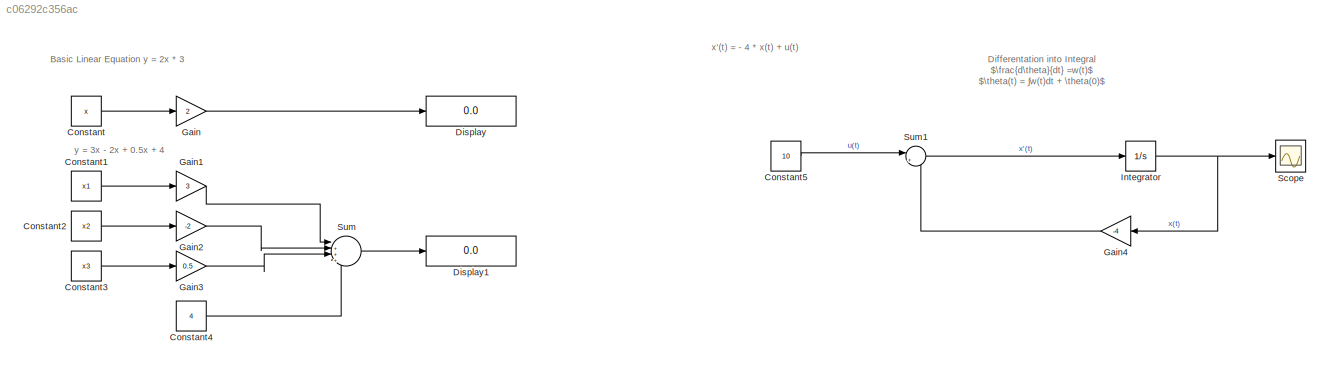
MODEL slx_c06292c356ac
KIND model
CONFIG AbsTol = auto
CONFIG EnableMultiTasking = off
CONFIG FixedStep = auto
CONFIG MaxStep = auto
CONFIG MinStep = auto
CONFIG RelTol = 1e-3
CONFIG SampleTimeConstraint = Unconstrained
CONFIG SolverName = VariableStepAuto
CONFIG StartTime = 0.0
CONFIG StopTime = 10.0
BLOCK [Constant] Constant
  Commented = on
  Value = x
BLOCK [Constant] Constant1
  Commented = on
  Value = x1
BLOCK [Constant] Constant2
  Commented = on
  Value = x2
BLOCK [Constant] Constant3
  Commented = on
  Value = x3
BLOCK [Constant] Constant4
  Value = 4
BLOCK [Constant] Constant5
  Value = 10
BLOCK [Display] Display
  Decimation = 1
BLOCK [Display] Display1
  Decimation = 1
BLOCK [Gain] Gain
  Gain = 2
BLOCK [Gain] Gain1
  Gain = 3
BLOCK [Gain] Gain2
  Gain = -2
BLOCK [Gain] Gain3
  Gain = 0.5
BLOCK [Gain] Gain4
  Gain = -4
  NameLocation = top
BLOCK [Integrator] Integrator
BLOCK [Scope] Scope
  ActiveDisplayYMaximum = 2.8124999999999996
  ActiveDisplayYMinimum = -0.31249999999999989
  Floating = off
  GraphicalSettings = {"Style":{"BackgroundColor":[0.12941176470588237,0.12941176470588237,0.12941176470588237],"AxesColor":[0.07058823529411765,0.07058823529411765,0.07058823529411765],"LabelsColor":[0.8509803921568627,0.8509803921568627,0.8509803921568627],"PreserveColors":false,"Visible":[true],"LineStyle":["-"],"LineWidth":[1.5],"BarWidth":[0.9],"LineColor":["auto"],"LineFaceAlpha":[1],"LineEdgeAlpha":[1],"Marker":...<+1998ch>
  MultipleDisplayCache = [{"MaxYLimMag":2.8124999999999996,"MaxYLimReal":2.8124999999999996,"MinYLimMag":0,"MinYLimReal":-0.31249999999999989,"PlotAsMagnitudePhase":false,"ShowGrid":true,"ShowLegend":false,"Title":"%<SignalLabel>","YLabel":""}]
  NumInputPorts = 1
  ScopeFrameLocation = window
  Visible = on
  WasSavedAsWebScope = on
  WindowPosition = [568.000000,-298.000000,560.000000,420.000000,]
BLOCK [Sum] Sum
  Inputs = |++++
BLOCK [Sum] Sum1
  Inputs = |++
ANNOTATION (root): y = 3x - 2x + 0.5x + 4
ANNOTATION (root): Differentation into Integral $\frac{d\theta}{dt} =w(t)$ $\theta(t) = ∫w(t)dt + \theta(0)$
ANNOTATION (root): Basic Linear Equation y = 2x * 3
ANNOTATION (root): x'(t) = - 4 * x(t) + u(t)
LINE Constant1:1 -> Gain1:1
LINE Constant2:1 -> Gain2:1
LINE Constant3:1 -> Gain3:1
LINE Constant4:1 -> Sum:4
LINE Constant5:1 -> Sum1:1
LINE Constant:1 -> Gain:1
LINE Gain1:1 -> Sum:1
LINE Gain2:1 -> Sum:2
LINE Gain3:1 -> Sum:3
LINE Gain4:1 -> Sum1:2
LINE Gain:1 -> Display:1
NET Integrator:1 -> Gain4:1, Scope:1
LINE Sum1:1 -> Integrator:1
LINE Sum:1 -> Display1:1
note: NET lines group one-source signal fan-out (src -> all destinations, sorted); 1:1 wires keep LINE
